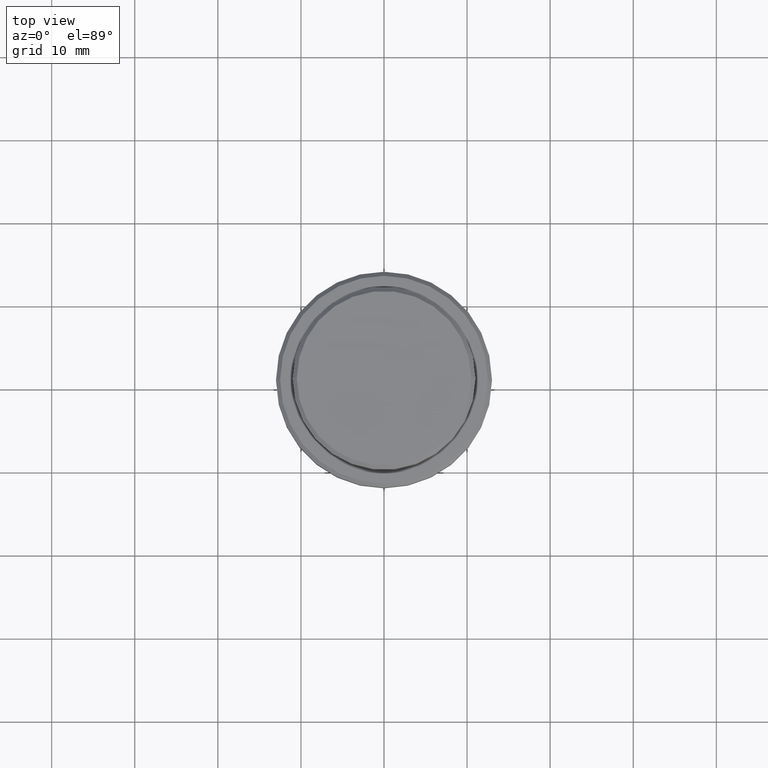
[diagram: clean part render]
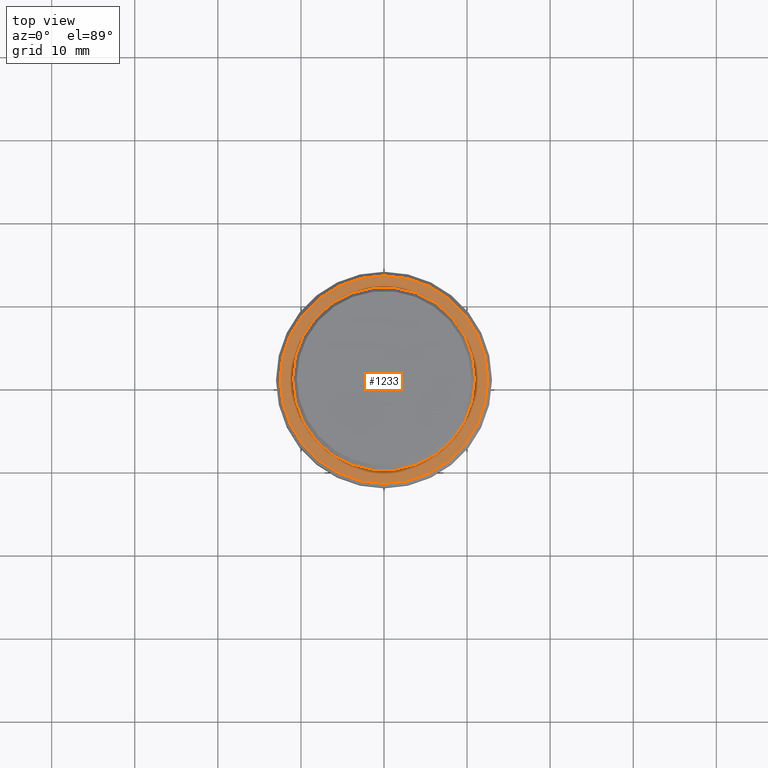
[diagram: same view with one face highlighted and labeled with its STEP entity id]
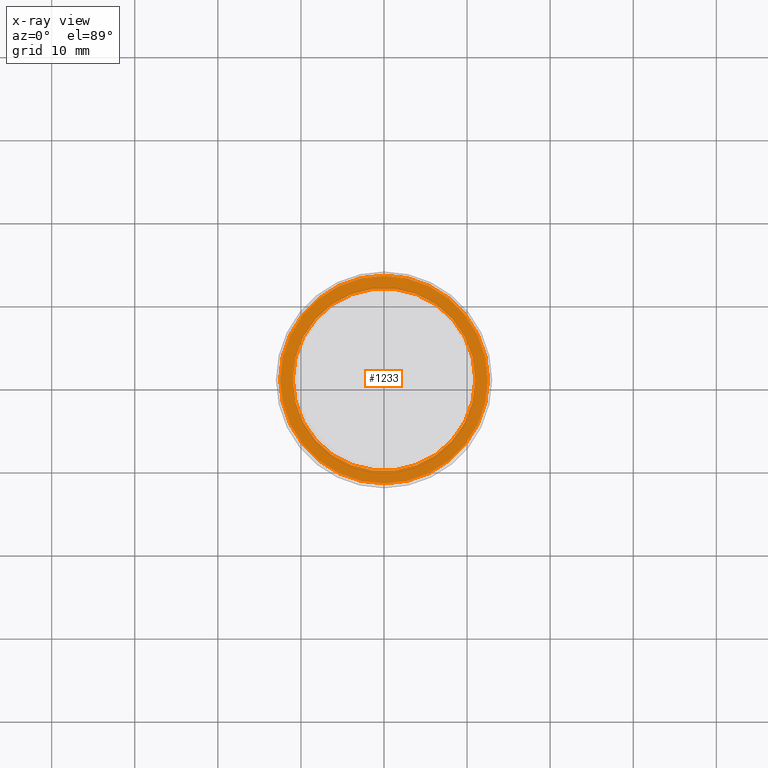
[diagram: x-ray of the same camera — body ghosted, the highlighted face saturated]
A machine part, top view. The second image highlights one B-rep face of the part: STEP entity #1233.
The next image is the same camera in x-ray: the body ghosted, the highlighted face saturated — about 0% of this face is hidden behind the body in this view.
In plain terms, the highlighted planar face has unit normal (0, -0, 1).
Its self-contained STEP definition (entity closure, byte-faithful):
#26 = DIRECTION ( 'NONE',  ( 0.000000000000000000, 0.000000000000000000, -1.000000000000000000 ) ) ;
#54 = CIRCLE ( 'NONE', #169, 10.99999999999996625 ) ;
#84 = ORIENTED_EDGE ( 'NONE', *, *, #273, .T. ) ;
#114 = VERTEX_POINT ( 'NONE', #1210 ) ;
#122 = AXIS2_PLACEMENT_3D ( 'NONE', #1127, #150, #510 ) ;
#143 = CARTESIAN_POINT ( 'NONE',  ( 0.000000000000000000, 0.000000000000000000, -10.00000000000000000 ) ) ;
#150 = DIRECTION ( 'NONE',  ( -0.000000000000000000, -0.000000000000000000, 1.000000000000000000 ) ) ;
#159 = VERTEX_POINT ( 'NONE', #1053 ) ;
#169 = AXIS2_PLACEMENT_3D ( 'NONE', #796, #26, #258 ) ;
#172 = CARTESIAN_POINT ( 'NONE',  ( -10.99999999999996625, 1.347111479062084460E-15, -10.00000000000000000 ) ) ;
#258 = DIRECTION ( 'NONE',  ( 1.000000000000000000, 0.000000000000000000, 0.000000000000000000 ) ) ;
#273 = EDGE_CURVE ( 'NONE', #114, #1021, #1218, .T. ) ;
#447 = CIRCLE ( 'NONE', #1246, 12.49999999999998401 ) ;
#486 = EDGE_LOOP ( 'NONE', ( #84, #704 ) ) ;
#496 = FACE_OUTER_BOUND ( 'NONE', #486, .T. ) ;
#497 = CARTESIAN_POINT ( 'NONE',  ( 0.000000000000000000, 0.000000000000000000, -10.00000000000000000 ) ) ;
#510 = DIRECTION ( 'NONE',  ( 1.000000000000000000, 0.000000000000000000, 0.000000000000000000 ) ) ;
#567 = DIRECTION ( 'NONE',  ( 1.000000000000000000, 0.000000000000000000, 0.000000000000000000 ) ) ;
#573 = EDGE_CURVE ( 'NONE', #1021, #114, #447, .T. ) ;
#582 = DIRECTION ( 'NONE',  ( -0.000000000000000000, -0.000000000000000000, 1.000000000000000000 ) ) ;
#621 = PLANE ( 'NONE',  #1010 ) ;
#666 = CARTESIAN_POINT ( 'NONE',  ( 12.49999999999998401, 1.561424668912874125E-15, -10.00000000000000000 ) ) ;
#704 = ORIENTED_EDGE ( 'NONE', *, *, #573, .T. ) ;
#790 = EDGE_CURVE ( 'NONE', #159, #1107, #54, .T. ) ;
#796 = CARTESIAN_POINT ( 'NONE',  ( 0.000000000000000000, 0.000000000000000000, -10.00000000000000000 ) ) ;
#835 = FACE_BOUND ( 'NONE', #1286, .T. ) ;
#836 = DIRECTION ( 'NONE',  ( 1.000000000000000000, 0.000000000000000000, 0.000000000000000000 ) ) ;
#842 = DIRECTION ( 'NONE',  ( 0.000000000000000000, 0.000000000000000000, -1.000000000000000000 ) ) ;
#872 = EDGE_CURVE ( 'NONE', #1107, #159, #1007, .T. ) ;
#931 = DIRECTION ( 'NONE',  ( 0.000000000000000000, -0.000000000000000000, 1.000000000000000000 ) ) ;
#964 = ORIENTED_EDGE ( 'NONE', *, *, #790, .T. ) ;
#1007 = CIRCLE ( 'NONE', #1039, 10.99999999999996625 ) ;
#1010 = AXIS2_PLACEMENT_3D ( 'NONE', #1048, #931, #1367 ) ;
#1021 = VERTEX_POINT ( 'NONE', #666 ) ;
#1039 = AXIS2_PLACEMENT_3D ( 'NONE', #497, #842, #836 ) ;
#1048 = CARTESIAN_POINT ( 'NONE',  ( 0.000000000000000000, 10.49999999999996625, -10.00000000000000000 ) ) ;
#1053 = CARTESIAN_POINT ( 'NONE',  ( 10.99999999999996625, 0.000000000000000000, -10.00000000000000000 ) ) ;
#1107 = VERTEX_POINT ( 'NONE', #172 ) ;
#1127 = CARTESIAN_POINT ( 'NONE',  ( 0.000000000000000000, 0.000000000000000000, -10.00000000000000000 ) ) ;
#1210 = CARTESIAN_POINT ( 'NONE',  ( -12.49999999999998401, 0.000000000000000000, -10.00000000000000000 ) ) ;
#1218 = CIRCLE ( 'NONE', #122, 12.49999999999998401 ) ;
#1233 = ADVANCED_FACE ( 'NONE', ( #496, #835 ), #621, .T. ) ;
#1239 = ORIENTED_EDGE ( 'NONE', *, *, #872, .T. ) ;
#1246 = AXIS2_PLACEMENT_3D ( 'NONE', #143, #582, #567 ) ;
#1286 = EDGE_LOOP ( 'NONE', ( #964, #1239 ) ) ;
#1367 = DIRECTION ( 'NONE',  ( 1.000000000000000000, 0.000000000000000000, 0.000000000000000000 ) ) ;